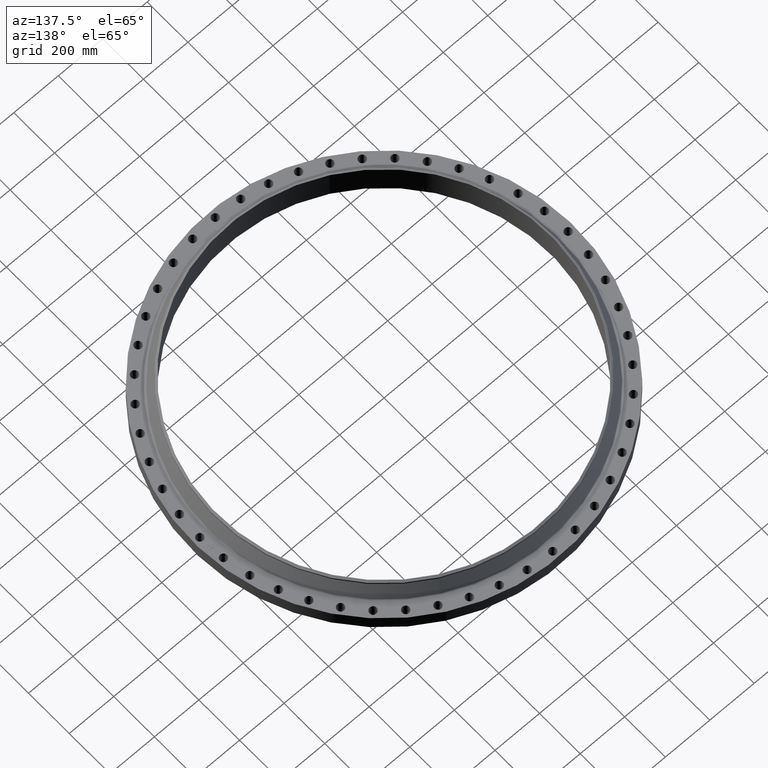
[diagram: clean part render]
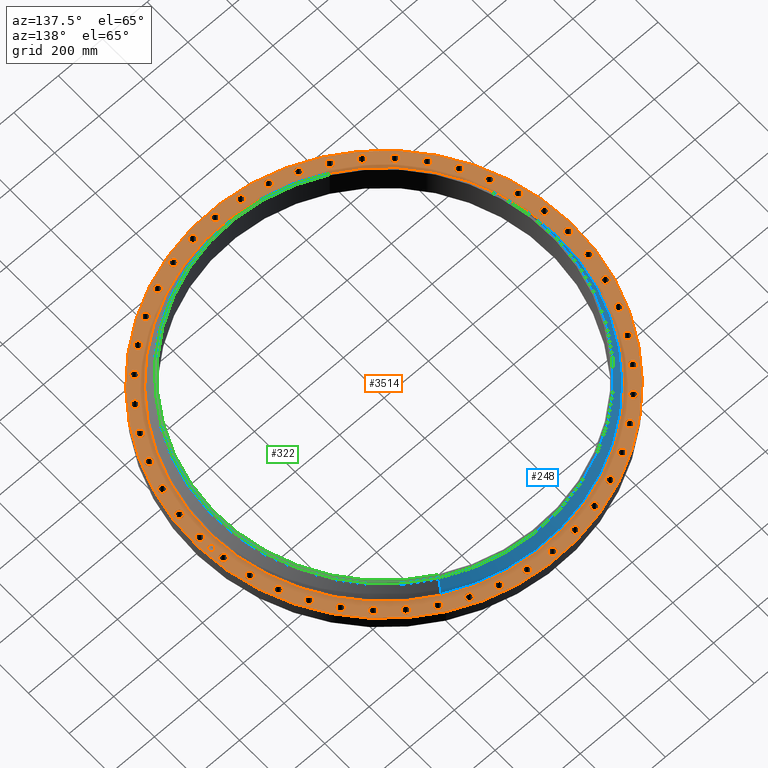
[diagram: same view with three faces highlighted in distinct colors, each labeled with its STEP entity id]
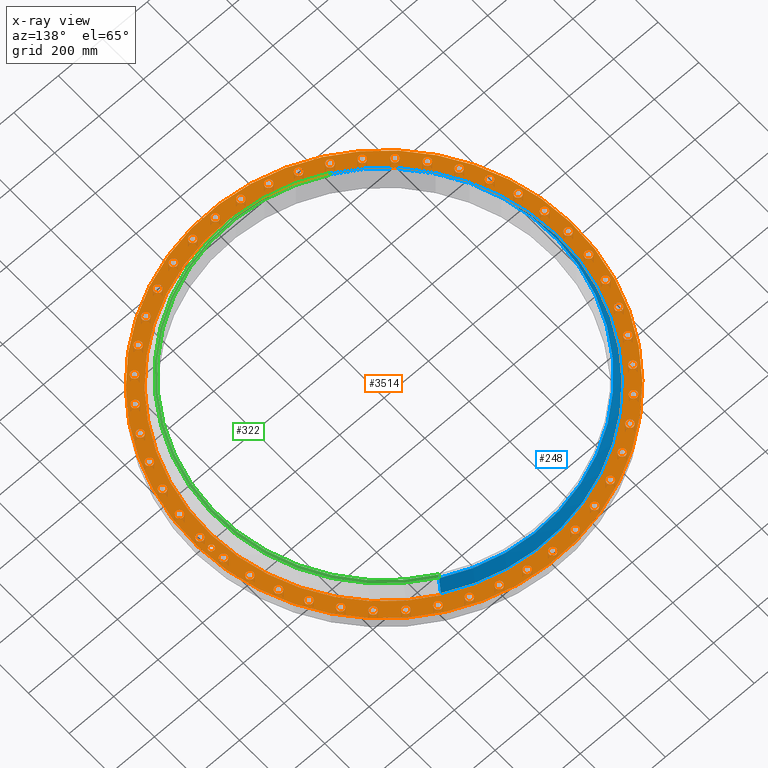
[diagram: x-ray of the same camera — body ghosted, the three highlighted faces saturated]
A machine part, auxiliary view with three faces highlighted in distinct colors.
The next image is the same camera in x-ray (body ghosted, the three faces saturated) — at least one of them is partly hidden behind the body in this view.
Their STEP definitions:

[orange] entity #3514 — the highlighted planar face has unit normal (0, 0, -1).
#65=AXIS2_PLACEMENT_3D('Circle Axis2P3D',#63,#64,$) ;
#82=AXIS2_PLACEMENT_3D('Circle Axis2P3D',#80,#81,$) ;
#115=AXIS2_PLACEMENT_3D('Circle Axis2P3D',#113,#114,$) ;
#139=AXIS2_PLACEMENT_3D('Circle Axis2P3D',#137,#138,$) ;
#156=AXIS2_PLACEMENT_3D('Circle Axis2P3D',#154,#155,$) ;
#191=AXIS2_PLACEMENT_3D('Circle Axis2P3D',#189,#190,$) ;
#1291=AXIS2_PLACEMENT_3D('Circle Axis2P3D',#1289,#1290,$) ;
#1303=AXIS2_PLACEMENT_3D('Circle Axis2P3D',#1301,#1302,$) ;
#1334=AXIS2_PLACEMENT_3D('Circle Axis2P3D',#1332,#1333,$) ;
#1346=AXIS2_PLACEMENT_3D('Circle Axis2P3D',#1344,#1345,$) ;
#1377=AXIS2_PLACEMENT_3D('Circle Axis2P3D',#1375,#1376,$) ;
#1389=AXIS2_PLACEMENT_3D('Circle Axis2P3D',#1387,#1388,$) ;
#1420=AXIS2_PLACEMENT_3D('Circle Axis2P3D',#1418,#1419,$) ;
#1432=AXIS2_PLACEMENT_3D('Circle Axis2P3D',#1430,#1431,$) ;
#1463=AXIS2_PLACEMENT_3D('Circle Axis2P3D',#1461,#1462,$) ;
#1475=AXIS2_PLACEMENT_3D('Circle Axis2P3D',#1473,#1474,$) ;
#1506=AXIS2_PLACEMENT_3D('Circle Axis2P3D',#1504,#1505,$) ;
#1518=AXIS2_PLACEMENT_3D('Circle Axis2P3D',#1516,#1517,$) ;
#1549=AXIS2_PLACEMENT_3D('Circle Axis2P3D',#1547,#1548,$) ;
#1561=AXIS2_PLACEMENT_3D('Circle Axis2P3D',#1559,#1560,$) ;
#1592=AXIS2_PLACEMENT_3D('Circle Axis2P3D',#1590,#1591,$) ;
#1604=AXIS2_PLACEMENT_3D('Circle Axis2P3D',#1602,#1603,$) ;
#1635=AXIS2_PLACEMENT_3D('Circle Axis2P3D',#1633,#1634,$) ;
#1647=AXIS2_PLACEMENT_3D('Circle Axis2P3D',#1645,#1646,$) ;
#1678=AXIS2_PLACEMENT_3D('Circle Axis2P3D',#1676,#1677,$) ;
#1690=AXIS2_PLACEMENT_3D('Circle Axis2P3D',#1688,#1689,$) ;
#1721=AXIS2_PLACEMENT_3D('Circle Axis2P3D',#1719,#1720,$) ;
#1733=AXIS2_PLACEMENT_3D('Circle Axis2P3D',#1731,#1732,$) ;
#1764=AXIS2_PLACEMENT_3D('Circle Axis2P3D',#1762,#1763,$) ;
#1776=AXIS2_PLACEMENT_3D('Circle Axis2P3D',#1774,#1775,$) ;
#1807=AXIS2_PLACEMENT_3D('Circle Axis2P3D',#1805,#1806,$) ;
#1819=AXIS2_PLACEMENT_3D('Circle Axis2P3D',#1817,#1818,$) ;
#1850=AXIS2_PLACEMENT_3D('Circle Axis2P3D',#1848,#1849,$) ;
#1862=AXIS2_PLACEMENT_3D('Circle Axis2P3D',#1860,#1861,$) ;
#1893=AXIS2_PLACEMENT_3D('Circle Axis2P3D',#1891,#1892,$) ;
#1905=AXIS2_PLACEMENT_3D('Circle Axis2P3D',#1903,#1904,$) ;
#1936=AXIS2_PLACEMENT_3D('Circle Axis2P3D',#1934,#1935,$) ;
#1948=AXIS2_PLACEMENT_3D('Circle Axis2P3D',#1946,#1947,$) ;
#1979=AXIS2_PLACEMENT_3D('Circle Axis2P3D',#1977,#1978,$) ;
#1991=AXIS2_PLACEMENT_3D('Circle Axis2P3D',#1989,#1990,$) ;
#2022=AXIS2_PLACEMENT_3D('Circle Axis2P3D',#2020,#2021,$) ;
#2034=AXIS2_PLACEMENT_3D('Circle Axis2P3D',#2032,#2033,$) ;
#2065=AXIS2_PLACEMENT_3D('Circle Axis2P3D',#2063,#2064,$) ;
#2077=AXIS2_PLACEMENT_3D('Circle Axis2P3D',#2075,#2076,$) ;
#2108=AXIS2_PLACEMENT_3D('Circle Axis2P3D',#2106,#2107,$) ;
#2120=AXIS2_PLACEMENT_3D('Circle Axis2P3D',#2118,#2119,$) ;
#2151=AXIS2_PLACEMENT_3D('Circle Axis2P3D',#2149,#2150,$) ;
#2163=AXIS2_PLACEMENT_3D('Circle Axis2P3D',#2161,#2162,$) ;
#2194=AXIS2_PLACEMENT_3D('Circle Axis2P3D',#2192,#2193,$) ;
#2206=AXIS2_PLACEMENT_3D('Circle Axis2P3D',#2204,#2205,$) ;
#2237=AXIS2_PLACEMENT_3D('Circle Axis2P3D',#2235,#2236,$) ;
#2249=AXIS2_PLACEMENT_3D('Circle Axis2P3D',#2247,#2248,$) ;
#2280=AXIS2_PLACEMENT_3D('Circle Axis2P3D',#2278,#2279,$) ;
#2292=AXIS2_PLACEMENT_3D('Circle Axis2P3D',#2290,#2291,$) ;
#2323=AXIS2_PLACEMENT_3D('Circle Axis2P3D',#2321,#2322,$) ;
#2335=AXIS2_PLACEMENT_3D('Circle Axis2P3D',#2333,#2334,$) ;
#2366=AXIS2_PLACEMENT_3D('Circle Axis2P3D',#2364,#2365,$) ;
#2378=AXIS2_PLACEMENT_3D('Circle Axis2P3D',#2376,#2377,$) ;
#2409=AXIS2_PLACEMENT_3D('Circle Axis2P3D',#2407,#2408,$) ;
#2421=AXIS2_PLACEMENT_3D('Circle Axis2P3D',#2419,#2420,$) ;
#2452=AXIS2_PLACEMENT_3D('Circle Axis2P3D',#2450,#2451,$) ;
#2464=AXIS2_PLACEMENT_3D('Circle Axis2P3D',#2462,#2463,$) ;
#2495=AXIS2_PLACEMENT_3D('Circle Axis2P3D',#2493,#2494,$) ;
#2507=AXIS2_PLACEMENT_3D('Circle Axis2P3D',#2505,#2506,$) ;
#2538=AXIS2_PLACEMENT_3D('Circle Axis2P3D',#2536,#2537,$) ;
#2550=AXIS2_PLACEMENT_3D('Circle Axis2P3D',#2548,#2549,$) ;
#2581=AXIS2_PLACEMENT_3D('Circle Axis2P3D',#2579,#2580,$) ;
#2593=AXIS2_PLACEMENT_3D('Circle Axis2P3D',#2591,#2592,$) ;
#2624=AXIS2_PLACEMENT_3D('Circle Axis2P3D',#2622,#2623,$) ;
#2636=AXIS2_PLACEMENT_3D('Circle Axis2P3D',#2634,#2635,$) ;
#2667=AXIS2_PLACEMENT_3D('Circle Axis2P3D',#2665,#2666,$) ;
#2679=AXIS2_PLACEMENT_3D('Circle Axis2P3D',#2677,#2678,$) ;
#2710=AXIS2_PLACEMENT_3D('Circle Axis2P3D',#2708,#2709,$) ;
#2722=AXIS2_PLACEMENT_3D('Circle Axis2P3D',#2720,#2721,$) ;
#2753=AXIS2_PLACEMENT_3D('Circle Axis2P3D',#2751,#2752,$) ;
#2765=AXIS2_PLACEMENT_3D('Circle Axis2P3D',#2763,#2764,$) ;
#2796=AXIS2_PLACEMENT_3D('Circle Axis2P3D',#2794,#2795,$) ;
#2808=AXIS2_PLACEMENT_3D('Circle Axis2P3D',#2806,#2807,$) ;
#2839=AXIS2_PLACEMENT_3D('Circle Axis2P3D',#2837,#2838,$) ;
#2851=AXIS2_PLACEMENT_3D('Circle Axis2P3D',#2849,#2850,$) ;
#2882=AXIS2_PLACEMENT_3D('Circle Axis2P3D',#2880,#2881,$) ;
#2894=AXIS2_PLACEMENT_3D('Circle Axis2P3D',#2892,#2893,$) ;
#2925=AXIS2_PLACEMENT_3D('Circle Axis2P3D',#2923,#2924,$) ;
#2937=AXIS2_PLACEMENT_3D('Circle Axis2P3D',#2935,#2936,$) ;
#2968=AXIS2_PLACEMENT_3D('Circle Axis2P3D',#2966,#2967,$) ;
#2980=AXIS2_PLACEMENT_3D('Circle Axis2P3D',#2978,#2979,$) ;
#3011=AXIS2_PLACEMENT_3D('Circle Axis2P3D',#3009,#3010,$) ;
#3023=AXIS2_PLACEMENT_3D('Circle Axis2P3D',#3021,#3022,$) ;
#3054=AXIS2_PLACEMENT_3D('Circle Axis2P3D',#3052,#3053,$) ;
#3066=AXIS2_PLACEMENT_3D('Circle Axis2P3D',#3064,#3065,$) ;
#3097=AXIS2_PLACEMENT_3D('Circle Axis2P3D',#3095,#3096,$) ;
#3109=AXIS2_PLACEMENT_3D('Circle Axis2P3D',#3107,#3108,$) ;
#3140=AXIS2_PLACEMENT_3D('Circle Axis2P3D',#3138,#3139,$) ;
#3152=AXIS2_PLACEMENT_3D('Circle Axis2P3D',#3150,#3151,$) ;
#3183=AXIS2_PLACEMENT_3D('Circle Axis2P3D',#3181,#3182,$) ;
#3195=AXIS2_PLACEMENT_3D('Circle Axis2P3D',#3193,#3194,$) ;
#3226=AXIS2_PLACEMENT_3D('Circle Axis2P3D',#3224,#3225,$) ;
#3238=AXIS2_PLACEMENT_3D('Circle Axis2P3D',#3236,#3237,$) ;
#3269=AXIS2_PLACEMENT_3D('Circle Axis2P3D',#3267,#3268,$) ;
#3281=AXIS2_PLACEMENT_3D('Circle Axis2P3D',#3279,#3280,$) ;
#3294=AXIS2_PLACEMENT_3D('Plane Axis2P3D',#3291,#3292,#3293) ;
#3498=AXIS2_PLACEMENT_3D('Circle Axis2P3D',#3496,#3497,$) ;
#3507=AXIS2_PLACEMENT_3D('Circle Axis2P3D',#3505,#3506,$) ;
#46=CARTESIAN_POINT('Vertex',(32.0765108989,0.299640961629,2.75000000001)) ;
#60=CARTESIAN_POINT('Vertex',(33.1734891013,-0.299640961629,2.75000000001)) ;
#63=CARTESIAN_POINT('Axis2P3D Location',(32.6250000001,0.,2.75000000001)) ;
#80=CARTESIAN_POINT('Axis2P3D Location',(32.6250000001,0.,2.75000000001)) ;
#110=CARTESIAN_POINT('Vertex',(-16.180611928,-29.6184114639,2.75000000001)) ;
#113=CARTESIAN_POINT('Axis2P3D Location',(0.,0.,2.75000000001)) ;
#117=CARTESIAN_POINT('Vertex',(16.180611928,29.6184114639,2.75000000001)) ;
#137=CARTESIAN_POINT('Axis2P3D Location',(0.,0.,2.75000000001)) ;
#154=CARTESIAN_POINT('Axis2P3D Location',(0.,0.,2.75000000001)) ;
#158=CARTESIAN_POINT('Vertex',(14.9999204068,27.4571701313,2.75000000001)) ;
#160=CARTESIAN_POINT('Vertex',(-14.9999204068,-27.4571701313,2.75000000001)) ;
#189=CARTESIAN_POINT('Axis2P3D Location',(0.,0.,2.75000000001)) ;
#1279=CARTESIAN_POINT('Vertex',(-31.8412028953,3.88974733568,2.75000000001)) ;
#1286=CARTESIAN_POINT('Vertex',(-32.8505743096,4.62708670671,2.75000000001)) ;
#1289=CARTESIAN_POINT('Axis2P3D Location',(-32.3458886024,4.2584170212,2.75000000001)) ;
#1301=CARTESIAN_POINT('Axis2P3D Location',(-32.3458886024,4.2584170212,2.75000000001)) ;
#1322=CARTESIAN_POINT('Vertex',(31.0610830821,-8.01258097763,2.75000000001)) ;
#1329=CARTESIAN_POINT('Vertex',(31.9655770835,-8.87536171537,2.75000000001)) ;
#1332=CARTESIAN_POINT('Axis2P3D Location',(31.5133300828,-8.4439713465,2.75000000001)) ;
#1344=CARTESIAN_POINT('Axis2P3D Location',(31.5133300828,-8.4439713465,2.75000000001)) ;
#1365=CARTESIAN_POINT('Vertex',(-31.0610830821,8.01258097763,2.75000000001)) ;
#1372=CARTESIAN_POINT('Vertex',(-31.9655770835,8.87536171537,2.75000000001)) ;
#1375=CARTESIAN_POINT('Axis2P3D Location',(-31.5133300828,8.4439713465,2.75000000001)) ;
#1387=CARTESIAN_POINT('Axis2P3D Location',(-31.5133300828,8.4439713465,2.75000000001)) ;
#1408=CARTESIAN_POINT('Vertex',(29.7494995256,-11.9983171376,2.75000000001)) ;
#1415=CARTESIAN_POINT('Vertex',(30.533639971,-12.9717768244,2.75000000001)) ;
#1418=CARTESIAN_POINT('Axis2P3D Location',(30.1415697483,-12.485046981,2.75000000001)) ;
#1430=CARTESIAN_POINT('Axis2P3D Location',(30.1415697483,-12.485046981,2.75000000001)) ;
#1451=CARTESIAN_POINT('Vertex',(-29.7494995256,11.9983171376,2.75000000001)) ;
#1458=CARTESIAN_POINT('Vertex',(-30.533639971,12.9717768244,2.75000000001)) ;
#1461=CARTESIAN_POINT('Axis2P3D Location',(-30.1415697483,12.485046981,2.75000000001)) ;
#1473=CARTESIAN_POINT('Axis2P3D Location',(-30.1415697483,12.485046981,2.75000000001)) ;
#1494=CARTESIAN_POINT('Vertex',(27.9288937841,-15.7787587647,2.75000000001)) ;
#1501=CARTESIAN_POINT('Vertex',(28.5792638131,-16.8462412354,2.75000000001)) ;
#1504=CARTESIAN_POINT('Axis2P3D Location',(28.2540787986,-16.3125000001,2.75000000001)) ;
#1516=CARTESIAN_POINT('Axis2P3D Location',(28.2540787986,-16.3125000001,2.75000000001)) ;
#1537=CARTESIAN_POINT('Vertex',(-27.9288937841,15.7787587647,2.75000000001)) ;
#1544=CARTESIAN_POINT('Vertex',(-28.5792638131,16.8462412354,2.75000000001)) ;
#1547=CARTESIAN_POINT('Axis2P3D Location',(-28.2540787986,16.3125000001,2.75000000001)) ;
#1559=CARTESIAN_POINT('Axis2P3D Location',(-28.2540787986,16.3125000001,2.75000000001)) ;
#1580=CARTESIAN_POINT('Vertex',(25.6304169266,-19.2892214547,2.75000000001)) ;
#1587=CARTESIAN_POINT('Vertex',(26.1358885277,-20.4324617883,2.75000000001)) ;
#1590=CARTESIAN_POINT('Axis2P3D Location',(25.8831527271,-19.8608416215,2.75000000001)) ;
#1602=CARTESIAN_POINT('Axis2P3D Location',(25.8831527271,-19.8608416215,2.75000000001)) ;
#1623=CARTESIAN_POINT('Vertex',(-25.6304169266,19.2892214547,2.75000000001)) ;
#1630=CARTESIAN_POINT('Vertex',(-26.1358885277,20.4324617883,2.75000000001)) ;
#1633=CARTESIAN_POINT('Axis2P3D Location',(-25.8831527271,19.8608416215,2.75000000001)) ;
#1645=CARTESIAN_POINT('Axis2P3D Location',(-25.8831527271,19.8608416215,2.75000000001)) ;
#1666=CARTESIAN_POINT('Vertex',(22.8933965293,-22.4696402176,2.75000000001)) ;
#1673=CARTESIAN_POINT('Vertex',(23.2453209433,-23.669077255,2.75000000001)) ;
#1676=CARTESIAN_POINT('Axis2P3D Location',(23.0693587363,-23.0693587363,2.75000000001)) ;
#1688=CARTESIAN_POINT('Axis2P3D Location',(23.0693587363,-23.0693587363,2.75000000001)) ;
#1709=CARTESIAN_POINT('Vertex',(-22.8933965293,22.4696402176,2.75000000001)) ;
#1716=CARTESIAN_POINT('Vertex',(-23.2453209433,23.669077255,2.75000000001)) ;
#1719=CARTESIAN_POINT('Axis2P3D Location',(-23.0693587363,23.0693587363,2.75000000001)) ;
#1731=CARTESIAN_POINT('Axis2P3D Location',(-23.0693587363,23.0693587363,2.75000000001)) ;
#1752=CARTESIAN_POINT('Vertex',(19.7646637703,-25.2655972066,2.75000000001)) ;
#1759=CARTESIAN_POINT('Vertex',(19.9570194727,-26.5007082476,2.75000000001)) ;
#1762=CARTESIAN_POINT('Axis2P3D Location',(19.8608416215,-25.8831527271,2.75000000001)) ;
#1774=CARTESIAN_POINT('Axis2P3D Location',(19.8608416215,-25.8831527271,2.75000000001)) ;
#1795=CARTESIAN_POINT('Vertex',(-19.7646637703,25.2655972066,2.75000000001)) ;
#1802=CARTESIAN_POINT('Vertex',(-19.9570194727,26.5007082476,2.75000000001)) ;
#1805=CARTESIAN_POINT('Axis2P3D Location',(-19.8608416215,25.8831527271,2.75000000001)) ;
#1817=CARTESIAN_POINT('Axis2P3D Location',(-19.8608416215,25.8831527271,2.75000000001)) ;
#1838=CARTESIAN_POINT('Vertex',(16.2977521343,-27.6292528224,2.75000000001)) ;
#1845=CARTESIAN_POINT('Vertex',(16.3272478659,-28.8789047747,2.75000000001)) ;
#1848=CARTESIAN_POINT('Axis2P3D Location',(16.3125000001,-28.2540787986,2.75000000001)) ;
#1860=CARTESIAN_POINT('Axis2P3D Location',(16.3125000001,-28.2540787986,2.75000000001)) ;
#1881=CARTESIAN_POINT('Vertex',(-16.2977521343,27.6292528224,2.75000000001)) ;
#1888=CARTESIAN_POINT('Vertex',(-16.3272478659,28.8789047747,2.75000000001)) ;
#1891=CARTESIAN_POINT('Axis2P3D Location',(-16.3125000001,28.2540787986,2.75000000001)) ;
#1903=CARTESIAN_POINT('Axis2P3D Location',(-16.3125000001,28.2540787986,2.75000000001)) ;
#1924=CARTESIAN_POINT('Vertex',(12.5519814407,-29.5201642622,2.75000000001)) ;
#1931=CARTESIAN_POINT('Vertex',(12.4181125213,-30.7629752344,2.75000000001)) ;
#1934=CARTESIAN_POINT('Axis2P3D Location',(12.485046981,-30.1415697483,2.75000000001)) ;
#1946=CARTESIAN_POINT('Axis2P3D Location',(12.485046981,-30.1415697483,2.75000000001)) ;
#1967=CARTESIAN_POINT('Vertex',(-12.5519814407,29.5201642622,2.75000000001)) ;
#1974=CARTESIAN_POINT('Vertex',(-12.4181125213,30.7629752344,2.75000000001)) ;
#1977=CARTESIAN_POINT('Axis2P3D Location',(-12.485046981,30.1415697483,2.75000000001)) ;
#1989=CARTESIAN_POINT('Axis2P3D Location',(-12.485046981,30.1415697483,2.75000000001)) ;
#2010=CARTESIAN_POINT('Vertex',(8.59144286454,-30.905977507,2.75000000001)) ;
#2017=CARTESIAN_POINT('Vertex',(8.29649982847,-32.1206826586,2.75000000001)) ;
#2020=CARTESIAN_POINT('Axis2P3D Location',(8.4439713465,-31.5133300828,2.75000000001)) ;
#2032=CARTESIAN_POINT('Axis2P3D Location',(8.4439713465,-31.5133300828,2.75000000001)) ;
#2053=CARTESIAN_POINT('Vertex',(-8.59144286454,30.905977507,2.75000000001)) ;
#2060=CARTESIAN_POINT('Vertex',(-8.29649982847,32.1206826586,2.75000000001)) ;
#2063=CARTESIAN_POINT('Axis2P3D Location',(-8.4439713465,31.5133300828,2.75000000001)) ;
#2075=CARTESIAN_POINT('Axis2P3D Location',(-8.4439713465,31.5133300828,2.75000000001)) ;
#2096=CARTESIAN_POINT('Vertex',(4.48390231901,-31.7629809078,2.75000000001)) ;
#2103=CARTESIAN_POINT('Vertex',(4.03293172338,-32.9287962971,2.75000000001)) ;
#2106=CARTESIAN_POINT('Axis2P3D Location',(4.2584170212,-32.3458886024,2.75000000001)) ;
#2118=CARTESIAN_POINT('Axis2P3D Location',(4.2584170212,-32.3458886024,2.75000000001)) ;
#2139=CARTESIAN_POINT('Vertex',(-4.48390231901,31.7629809078,2.75000000001)) ;
#2146=CARTESIAN_POINT('Vertex',(-4.03293172338,32.9287962971,2.75000000001)) ;
#2149=CARTESIAN_POINT('Axis2P3D Location',(-4.2584170212,32.3458886024,2.75000000001)) ;
#2161=CARTESIAN_POINT('Axis2P3D Location',(-4.2584170212,32.3458886024,2.75000000001)) ;
#2182=CARTESIAN_POINT('Vertex',(0.299640961629,-32.0765108989,2.75000000001)) ;
#2189=CARTESIAN_POINT('Vertex',(-0.299640961629,-33.1734891013,2.75000000001)) ;
#2192=CARTESIAN_POINT('Axis2P3D Location',(-2.4781546617E-015,-32.6250000001,2.75000000001)) ;
#2204=CARTESIAN_POINT('Axis2P3D Location',(-2.4781546617E-015,-32.6250000001,2.75000000001)) ;
#2225=CARTESIAN_POINT('Vertex',(-0.299640961629,32.0765108989,2.75000000001)) ;
#2232=CARTESIAN_POINT('Vertex',(0.299640961629,33.1734891013,2.75000000001)) ;
#2235=CARTESIAN_POINT('Axis2P3D Location',(-1.51725552053E-015,32.6250000001,2.75000000001)) ;
#2247=CARTESIAN_POINT('Axis2P3D Location',(-1.51725552053E-015,32.6250000001,2.75000000001)) ;
#2268=CARTESIAN_POINT('Vertex',(-3.88974733568,-31.8412028953,2.75000000001)) ;
#2275=CARTESIAN_POINT('Vertex',(-4.62708670671,-32.8505743096,2.75000000001)) ;
#2278=CARTESIAN_POINT('Axis2P3D Location',(-4.2584170212,-32.3458886024,2.75000000001)) ;
#2290=CARTESIAN_POINT('Axis2P3D Location',(-4.2584170212,-32.3458886024,2.75000000001)) ;
#2311=CARTESIAN_POINT('Vertex',(3.88974733568,31.8412028953,2.75000000001)) ;
#2318=CARTESIAN_POINT('Vertex',(4.62708670671,32.8505743096,2.75000000001)) ;
#2321=CARTESIAN_POINT('Axis2P3D Location',(4.2584170212,32.3458886024,2.75000000001)) ;
#2333=CARTESIAN_POINT('Axis2P3D Location',(4.2584170212,32.3458886024,2.75000000001)) ;
#2354=CARTESIAN_POINT('Vertex',(-8.01258097763,-31.0610830821,2.75000000001)) ;
#2361=CARTESIAN_POINT('Vertex',(-8.87536171537,-31.9655770835,2.75000000001)) ;
#2364=CARTESIAN_POINT('Axis2P3D Location',(-8.4439713465,-31.5133300828,2.75000000001)) ;
#2376=CARTESIAN_POINT('Axis2P3D Location',(-8.4439713465,-31.5133300828,2.75000000001)) ;
#2397=CARTESIAN_POINT('Vertex',(8.01258097763,31.0610830821,2.75000000001)) ;
#2404=CARTESIAN_POINT('Vertex',(8.87536171537,31.9655770835,2.75000000001)) ;
#2407=CARTESIAN_POINT('Axis2P3D Location',(8.4439713465,31.5133300828,2.75000000001)) ;
#2419=CARTESIAN_POINT('Axis2P3D Location',(8.4439713465,31.5133300828,2.75000000001)) ;
#2440=CARTESIAN_POINT('Vertex',(-11.9983171376,-29.7494995256,2.75000000001)) ;
#2447=CARTESIAN_POINT('Vertex',(-12.9717768244,-30.533639971,2.75000000001)) ;
#2450=CARTESIAN_POINT('Axis2P3D Location',(-12.485046981,-30.1415697483,2.75000000001)) ;
#2462=CARTESIAN_POINT('Axis2P3D Location',(-12.485046981,-30.1415697483,2.75000000001)) ;
#2483=CARTESIAN_POINT('Vertex',(11.9983171376,29.7494995256,2.75000000001)) ;
#2490=CARTESIAN_POINT('Vertex',(12.9717768244,30.533639971,2.75000000001)) ;
#2493=CARTESIAN_POINT('Axis2P3D Location',(12.485046981,30.1415697483,2.75000000001)) ;
#2505=CARTESIAN_POINT('Axis2P3D Location',(12.485046981,30.1415697483,2.75000000001)) ;
#2526=CARTESIAN_POINT('Vertex',(-15.7787587647,-27.9288937841,2.75000000001)) ;
#2533=CARTESIAN_POINT('Vertex',(-16.8462412354,-28.5792638131,2.75000000001)) ;
#2536=CARTESIAN_POINT('Axis2P3D Location',(-16.3125000001,-28.2540787986,2.75000000001)) ;
#2548=CARTESIAN_POINT('Axis2P3D Location',(-16.3125000001,-28.2540787986,2.75000000001)) ;
#2569=CARTESIAN_POINT('Vertex',(15.7787587647,27.9288937841,2.75000000001)) ;
#2576=CARTESIAN_POINT('Vertex',(16.8462412354,28.5792638131,2.75000000001)) ;
#2579=CARTESIAN_POINT('Axis2P3D Location',(16.3125000001,28.2540787986,2.75000000001)) ;
#2591=CARTESIAN_POINT('Axis2P3D Location',(16.3125000001,28.2540787986,2.75000000001)) ;
#2612=CARTESIAN_POINT('Vertex',(-19.2892214547,-25.6304169266,2.75000000001)) ;
#2619=CARTESIAN_POINT('Vertex',(-20.4324617883,-26.1358885277,2.75000000001)) ;
#2622=CARTESIAN_POINT('Axis2P3D Location',(-19.8608416215,-25.8831527271,2.75000000001)) ;
#2634=CARTESIAN_POINT('Axis2P3D Location',(-19.8608416215,-25.8831527271,2.75000000001)) ;
#2655=CARTESIAN_POINT('Vertex',(19.2892214547,25.6304169266,2.75000000001)) ;
#2662=CARTESIAN_POINT('Vertex',(20.4324617883,26.1358885277,2.75000000001)) ;
#2665=CARTESIAN_POINT('Axis2P3D Location',(19.8608416215,25.8831527271,2.75000000001)) ;
#2677=CARTESIAN_POINT('Axis2P3D Location',(19.8608416215,25.8831527271,2.75000000001)) ;
#2698=CARTESIAN_POINT('Vertex',(-22.4696402176,-22.8933965293,2.75000000001)) ;
#2705=CARTESIAN_POINT('Vertex',(-23.669077255,-23.2453209433,2.75000000001)) ;
#2708=CARTESIAN_POINT('Axis2P3D Location',(-23.0693587363,-23.0693587363,2.75000000001)) ;
#2720=CARTESIAN_POINT('Axis2P3D Location',(-23.0693587363,-23.0693587363,2.75000000001)) ;
#2741=CARTESIAN_POINT('Vertex',(22.4696402176,22.8933965293,2.75000000001)) ;
#2748=CARTESIAN_POINT('Vertex',(23.669077255,23.2453209433,2.75000000001)) ;
#2751=CARTESIAN_POINT('Axis2P3D Location',(23.0693587363,23.0693587363,2.75000000001)) ;
#2763=CARTESIAN_POINT('Axis2P3D Location',(23.0693587363,23.0693587363,2.75000000001)) ;
#2784=CARTESIAN_POINT('Vertex',(-25.2655972066,-19.7646637703,2.75000000001)) ;
#2791=CARTESIAN_POINT('Vertex',(-26.5007082476,-19.9570194727,2.75000000001)) ;
#2794=CARTESIAN_POINT('Axis2P3D Location',(-25.8831527271,-19.8608416215,2.75000000001)) ;
#2806=CARTESIAN_POINT('Axis2P3D Location',(-25.8831527271,-19.8608416215,2.75000000001)) ;
#2827=CARTESIAN_POINT('Vertex',(25.2655972066,19.7646637703,2.75000000001)) ;
#2834=CARTESIAN_POINT('Vertex',(26.5007082476,19.9570194727,2.75000000001)) ;
#2837=CARTESIAN_POINT('Axis2P3D Location',(25.8831527271,19.8608416215,2.75000000001)) ;
#2849=CARTESIAN_POINT('Axis2P3D Location',(25.8831527271,19.8608416215,2.75000000001)) ;
#2870=CARTESIAN_POINT('Vertex',(-27.6292528224,-16.2977521343,2.75000000001)) ;
#2877=CARTESIAN_POINT('Vertex',(-28.8789047747,-16.3272478659,2.75000000001)) ;
#2880=CARTESIAN_POINT('Axis2P3D Location',(-28.2540787986,-16.3125000001,2.75000000001)) ;
#2892=CARTESIAN_POINT('Axis2P3D Location',(-28.2540787986,-16.3125000001,2.75000000001)) ;
#2913=CARTESIAN_POINT('Vertex',(27.6292528224,16.2977521343,2.75000000001)) ;
#2920=CARTESIAN_POINT('Vertex',(28.8789047747,16.3272478659,2.75000000001)) ;
#2923=CARTESIAN_POINT('Axis2P3D Location',(28.2540787986,16.3125000001,2.75000000001)) ;
#2935=CARTESIAN_POINT('Axis2P3D Location',(28.2540787986,16.3125000001,2.75000000001)) ;
#2956=CARTESIAN_POINT('Vertex',(-29.5201642622,-12.5519814407,2.75000000001)) ;
#2963=CARTESIAN_POINT('Vertex',(-30.7629752344,-12.4181125213,2.75000000001)) ;
#2966=CARTESIAN_POINT('Axis2P3D Location',(-30.1415697483,-12.485046981,2.75000000001)) ;
#2978=CARTESIAN_POINT('Axis2P3D Location',(-30.1415697483,-12.485046981,2.75000000001)) ;
#2999=CARTESIAN_POINT('Vertex',(29.5201642622,12.5519814407,2.75000000001)) ;
#3006=CARTESIAN_POINT('Vertex',(30.7629752344,12.4181125213,2.75000000001)) ;
#3009=CARTESIAN_POINT('Axis2P3D Location',(30.1415697483,12.485046981,2.75000000001)) ;
#3021=CARTESIAN_POINT('Axis2P3D Location',(30.1415697483,12.485046981,2.75000000001)) ;
#3042=CARTESIAN_POINT('Vertex',(-30.905977507,-8.59144286454,2.75000000001)) ;
#3049=CARTESIAN_POINT('Vertex',(-32.1206826586,-8.29649982847,2.75000000001)) ;
#3052=CARTESIAN_POINT('Axis2P3D Location',(-31.5133300828,-8.4439713465,2.75000000001)) ;
#3064=CARTESIAN_POINT('Axis2P3D Location',(-31.5133300828,-8.4439713465,2.75000000001)) ;
#3085=CARTESIAN_POINT('Vertex',(30.905977507,8.59144286454,2.75000000001)) ;
#3092=CARTESIAN_POINT('Vertex',(32.1206826586,8.29649982847,2.75000000001)) ;
#3095=CARTESIAN_POINT('Axis2P3D Location',(31.5133300828,8.4439713465,2.75000000001)) ;
#3107=CARTESIAN_POINT('Axis2P3D Location',(31.5133300828,8.4439713465,2.75000000001)) ;
#3128=CARTESIAN_POINT('Vertex',(-31.7629809078,-4.48390231901,2.75000000001)) ;
#3135=CARTESIAN_POINT('Vertex',(-32.9287962971,-4.03293172338,2.75000000001)) ;
#3138=CARTESIAN_POINT('Axis2P3D Location',(-32.3458886024,-4.2584170212,2.75000000001)) ;
#3150=CARTESIAN_POINT('Axis2P3D Location',(-32.3458886024,-4.2584170212,2.75000000001)) ;
#3171=CARTESIAN_POINT('Vertex',(31.7629809078,4.48390231901,2.75000000001)) ;
#3178=CARTESIAN_POINT('Vertex',(32.9287962971,4.03293172338,2.75000000001)) ;
#3181=CARTESIAN_POINT('Axis2P3D Location',(32.3458886024,4.2584170212,2.75000000001)) ;
#3193=CARTESIAN_POINT('Axis2P3D Location',(32.3458886024,4.2584170212,2.75000000001)) ;
#3214=CARTESIAN_POINT('Vertex',(-32.0765108989,-0.299640961629,2.75000000001)) ;
#3221=CARTESIAN_POINT('Vertex',(-33.1734891013,0.299640961629,2.75000000001)) ;
#3224=CARTESIAN_POINT('Axis2P3D Location',(-32.6250000001,-3.99541018223E-015,2.75000000001)) ;
#3236=CARTESIAN_POINT('Axis2P3D Location',(-32.6250000001,-3.99541018223E-015,2.75000000001)) ;
#3257=CARTESIAN_POINT('Vertex',(31.8412028953,-3.88974733568,2.75000000001)) ;
#3264=CARTESIAN_POINT('Vertex',(32.8505743096,-4.62708670671,2.75000000001)) ;
#3267=CARTESIAN_POINT('Axis2P3D Location',(32.3458886024,-4.2584170212,2.75000000001)) ;
#3279=CARTESIAN_POINT('Axis2P3D Location',(32.3458886024,-4.2584170212,2.75000000001)) ;
#3291=CARTESIAN_POINT('Axis2P3D Location',(0.,33.7500000001,2.75000000001)) ;
#3496=CARTESIAN_POINT('Axis2P3D Location',(32.5551473708,2.13377709114,2.75000000001)) ;
#3500=CARTESIAN_POINT('Vertex',(32.5224458811,2.63270540921,2.75000000001)) ;
#3502=CARTESIAN_POINT('Vertex',(32.5878488605,1.63484877307,2.75000000001)) ;
#3505=CARTESIAN_POINT('Axis2P3D Location',(32.5551473708,2.13377709114,2.75000000001)) ;
#64=DIRECTION('Axis2P3D Direction',(0.,-0.,-0.0393700787402)) ;
#81=DIRECTION('Axis2P3D Direction',(0.,-0.,-0.0393700787402)) ;
#114=DIRECTION('Axis2P3D Direction',(0.,0.,-0.0393700787402)) ;
#138=DIRECTION('Axis2P3D Direction',(0.,0.,-0.0393700787402)) ;
#155=DIRECTION('Axis2P3D Direction',(0.,0.,-0.0393700787402)) ;
#190=DIRECTION('Axis2P3D Direction',(0.,0.,-0.0393700787402)) ;
#1290=DIRECTION('Axis2P3D Direction',(0.,0.,-0.0393700787402)) ;
#1302=DIRECTION('Axis2P3D Direction',(0.,0.,-0.0393700787402)) ;
#1333=DIRECTION('Axis2P3D Direction',(0.,-0.,-0.0393700787402)) ;
#1345=DIRECTION('Axis2P3D Direction',(0.,-0.,-0.0393700787402)) ;
#1376=DIRECTION('Axis2P3D Direction',(0.,0.,-0.0393700787402)) ;
#1388=DIRECTION('Axis2P3D Direction',(0.,0.,-0.0393700787402)) ;
#1419=DIRECTION('Axis2P3D Direction',(0.,-0.,-0.0393700787402)) ;
#1431=DIRECTION('Axis2P3D Direction',(0.,-0.,-0.0393700787402)) ;
#1462=DIRECTION('Axis2P3D Direction',(0.,0.,-0.0393700787402)) ;
#1474=DIRECTION('Axis2P3D Direction',(0.,0.,-0.0393700787402)) ;
#1505=DIRECTION('Axis2P3D Direction',(0.,-0.,-0.0393700787402)) ;
#1517=DIRECTION('Axis2P3D Direction',(0.,-0.,-0.0393700787402)) ;
#1548=DIRECTION('Axis2P3D Direction',(0.,0.,-0.0393700787402)) ;
#1560=DIRECTION('Axis2P3D Direction',(0.,0.,-0.0393700787402)) ;
#1591=DIRECTION('Axis2P3D Direction',(0.,-0.,-0.0393700787402)) ;
#1603=DIRECTION('Axis2P3D Direction',(0.,-0.,-0.0393700787402)) ;
#1634=DIRECTION('Axis2P3D Direction',(0.,0.,-0.0393700787402)) ;
#1646=DIRECTION('Axis2P3D Direction',(0.,0.,-0.0393700787402)) ;
#1677=DIRECTION('Axis2P3D Direction',(0.,-0.,-0.0393700787402)) ;
#1689=DIRECTION('Axis2P3D Direction',(0.,-0.,-0.0393700787402)) ;
#1720=DIRECTION('Axis2P3D Direction',(0.,0.,-0.0393700787402)) ;
#1732=DIRECTION('Axis2P3D Direction',(0.,0.,-0.0393700787402)) ;
#1763=DIRECTION('Axis2P3D Direction',(0.,-0.,-0.0393700787402)) ;
#1775=DIRECTION('Axis2P3D Direction',(0.,-0.,-0.0393700787402)) ;
#1806=DIRECTION('Axis2P3D Direction',(0.,0.,-0.0393700787402)) ;
#1818=DIRECTION('Axis2P3D Direction',(0.,0.,-0.0393700787402)) ;
#1849=DIRECTION('Axis2P3D Direction',(0.,-0.,-0.0393700787402)) ;
#1861=DIRECTION('Axis2P3D Direction',(0.,-0.,-0.0393700787402)) ;
#1892=DIRECTION('Axis2P3D Direction',(0.,0.,-0.0393700787402)) ;
#1904=DIRECTION('Axis2P3D Direction',(0.,0.,-0.0393700787402)) ;
#1935=DIRECTION('Axis2P3D Direction',(0.,-0.,-0.0393700787402)) ;
#1947=DIRECTION('Axis2P3D Direction',(0.,-0.,-0.0393700787402)) ;
#1978=DIRECTION('Axis2P3D Direction',(0.,0.,-0.0393700787402)) ;
#1990=DIRECTION('Axis2P3D Direction',(0.,0.,-0.0393700787402)) ;
#2021=DIRECTION('Axis2P3D Direction',(0.,-0.,-0.0393700787402)) ;
#2033=DIRECTION('Axis2P3D Direction',(0.,-0.,-0.0393700787402)) ;
#2064=DIRECTION('Axis2P3D Direction',(0.,0.,-0.0393700787402)) ;
#2076=DIRECTION('Axis2P3D Direction',(0.,0.,-0.0393700787402)) ;
#2107=DIRECTION('Axis2P3D Direction',(0.,-0.,-0.0393700787402)) ;
#2119=DIRECTION('Axis2P3D Direction',(0.,-0.,-0.0393700787402)) ;
#2150=DIRECTION('Axis2P3D Direction',(0.,0.,-0.0393700787402)) ;
#2162=DIRECTION('Axis2P3D Direction',(0.,0.,-0.0393700787402)) ;
#2193=DIRECTION('Axis2P3D Direction',(0.,-0.,-0.0393700787402)) ;
#2205=DIRECTION('Axis2P3D Direction',(0.,-0.,-0.0393700787402)) ;
#2236=DIRECTION('Axis2P3D Direction',(0.,0.,-0.0393700787402)) ;
#2248=DIRECTION('Axis2P3D Direction',(0.,0.,-0.0393700787402)) ;
#2279=DIRECTION('Axis2P3D Direction',(-0.,0.,-0.0393700787402)) ;
#2291=DIRECTION('Axis2P3D Direction',(-0.,0.,-0.0393700787402)) ;
#2322=DIRECTION('Axis2P3D Direction',(0.,0.,-0.0393700787402)) ;
#2334=DIRECTION('Axis2P3D Direction',(0.,0.,-0.0393700787402)) ;
#2365=DIRECTION('Axis2P3D Direction',(-0.,0.,-0.0393700787402)) ;
#2377=DIRECTION('Axis2P3D Direction',(-0.,0.,-0.0393700787402)) ;
#2408=DIRECTION('Axis2P3D Direction',(0.,0.,-0.0393700787402)) ;
#2420=DIRECTION('Axis2P3D Direction',(0.,0.,-0.0393700787402)) ;
#2451=DIRECTION('Axis2P3D Direction',(-0.,0.,-0.0393700787402)) ;
#2463=DIRECTION('Axis2P3D Direction',(-0.,0.,-0.0393700787402)) ;
#2494=DIRECTION('Axis2P3D Direction',(0.,0.,-0.0393700787402)) ;
#2506=DIRECTION('Axis2P3D Direction',(0.,0.,-0.0393700787402)) ;
#2537=DIRECTION('Axis2P3D Direction',(-0.,0.,-0.0393700787402)) ;
#2549=DIRECTION('Axis2P3D Direction',(-0.,0.,-0.0393700787402)) ;
#2580=DIRECTION('Axis2P3D Direction',(0.,0.,-0.0393700787402)) ;
#2592=DIRECTION('Axis2P3D Direction',(0.,0.,-0.0393700787402)) ;
#2623=DIRECTION('Axis2P3D Direction',(-0.,0.,-0.0393700787402)) ;
#2635=DIRECTION('Axis2P3D Direction',(-0.,0.,-0.0393700787402)) ;
#2666=DIRECTION('Axis2P3D Direction',(0.,0.,-0.0393700787402)) ;
#2678=DIRECTION('Axis2P3D Direction',(0.,0.,-0.0393700787402)) ;
#2709=DIRECTION('Axis2P3D Direction',(-0.,0.,-0.0393700787402)) ;
#2721=DIRECTION('Axis2P3D Direction',(-0.,0.,-0.0393700787402)) ;
#2752=DIRECTION('Axis2P3D Direction',(0.,0.,-0.0393700787402)) ;
#2764=DIRECTION('Axis2P3D Direction',(0.,0.,-0.0393700787402)) ;
#2795=DIRECTION('Axis2P3D Direction',(-0.,0.,-0.0393700787402)) ;
#2807=DIRECTION('Axis2P3D Direction',(-0.,0.,-0.0393700787402)) ;
#2838=DIRECTION('Axis2P3D Direction',(0.,0.,-0.0393700787402)) ;
#2850=DIRECTION('Axis2P3D Direction',(0.,0.,-0.0393700787402)) ;
#2881=DIRECTION('Axis2P3D Direction',(-0.,0.,-0.0393700787402)) ;
#2893=DIRECTION('Axis2P3D Direction',(-0.,0.,-0.0393700787402)) ;
#2924=DIRECTION('Axis2P3D Direction',(0.,0.,-0.0393700787402)) ;
#2936=DIRECTION('Axis2P3D Direction',(0.,0.,-0.0393700787402)) ;
#2967=DIRECTION('Axis2P3D Direction',(-0.,0.,-0.0393700787402)) ;
#2979=DIRECTION('Axis2P3D Direction',(-0.,0.,-0.0393700787402)) ;
#3010=DIRECTION('Axis2P3D Direction',(0.,0.,-0.0393700787402)) ;
#3022=DIRECTION('Axis2P3D Direction',(0.,0.,-0.0393700787402)) ;
#3053=DIRECTION('Axis2P3D Direction',(-0.,0.,-0.0393700787402)) ;
#3065=DIRECTION('Axis2P3D Direction',(-0.,0.,-0.0393700787402)) ;
#3096=DIRECTION('Axis2P3D Direction',(0.,0.,-0.0393700787402)) ;
#3108=DIRECTION('Axis2P3D Direction',(0.,0.,-0.0393700787402)) ;
#3139=DIRECTION('Axis2P3D Direction',(-0.,0.,-0.0393700787402)) ;
#3151=DIRECTION('Axis2P3D Direction',(-0.,0.,-0.0393700787402)) ;
#3182=DIRECTION('Axis2P3D Direction',(0.,0.,-0.0393700787402)) ;
#3194=DIRECTION('Axis2P3D Direction',(0.,0.,-0.0393700787402)) ;
#3225=DIRECTION('Axis2P3D Direction',(-0.,0.,-0.0393700787402)) ;
#3237=DIRECTION('Axis2P3D Direction',(-0.,0.,-0.0393700787402)) ;
#3268=DIRECTION('Axis2P3D Direction',(0.,-0.,-0.0393700787402)) ;
#3280=DIRECTION('Axis2P3D Direction',(0.,-0.,-0.0393700787402)) ;
#3292=DIRECTION('Axis2P3D Direction',(0.,0.,-0.0393700787402)) ;
#3293=DIRECTION('Axis2P3D XDirection',(0.0393700787402,0.,0.)) ;
#3497=DIRECTION('Axis2P3D Direction',(0.,0.,-0.0393700787402)) ;
#3506=DIRECTION('Axis2P3D Direction',(0.,0.,-0.0393700787402)) ;
#3297=ORIENTED_EDGE('',*,*,#141,.F.) ;
#3298=ORIENTED_EDGE('',*,*,#119,.F.) ;
#3301=ORIENTED_EDGE('',*,*,#67,.T.) ;
#3302=ORIENTED_EDGE('',*,*,#84,.T.) ;
#3305=ORIENTED_EDGE('',*,*,#193,.T.) ;
#3306=ORIENTED_EDGE('',*,*,#162,.T.) ;
#3309=ORIENTED_EDGE('',*,*,#3283,.T.) ;
#3310=ORIENTED_EDGE('',*,*,#3271,.T.) ;
#3313=ORIENTED_EDGE('',*,*,#1348,.T.) ;
#3314=ORIENTED_EDGE('',*,*,#1336,.T.) ;
#3317=ORIENTED_EDGE('',*,*,#1434,.T.) ;
#3318=ORIENTED_EDGE('',*,*,#1422,.T.) ;
#3321=ORIENTED_EDGE('',*,*,#1520,.T.) ;
#3322=ORIENTED_EDGE('',*,*,#1508,.T.) ;
#3325=ORIENTED_EDGE('',*,*,#1606,.T.) ;
#3326=ORIENTED_EDGE('',*,*,#1594,.T.) ;
#3329=ORIENTED_EDGE('',*,*,#1692,.T.) ;
#3330=ORIENTED_EDGE('',*,*,#1680,.T.) ;
#3333=ORIENTED_EDGE('',*,*,#1778,.T.) ;
#3334=ORIENTED_EDGE('',*,*,#1766,.T.) ;
#3337=ORIENTED_EDGE('',*,*,#1864,.T.) ;
#3338=ORIENTED_EDGE('',*,*,#1852,.T.) ;
#3341=ORIENTED_EDGE('',*,*,#1950,.T.) ;
#3342=ORIENTED_EDGE('',*,*,#1938,.T.) ;
#3345=ORIENTED_EDGE('',*,*,#2036,.T.) ;
#3346=ORIENTED_EDGE('',*,*,#2024,.T.) ;
#3349=ORIENTED_EDGE('',*,*,#2122,.T.) ;
#3350=ORIENTED_EDGE('',*,*,#2110,.T.) ;
#3353=ORIENTED_EDGE('',*,*,#2208,.T.) ;
#3354=ORIENTED_EDGE('',*,*,#2196,.T.) ;
#3357=ORIENTED_EDGE('',*,*,#2294,.T.) ;
#3358=ORIENTED_EDGE('',*,*,#2282,.T.) ;
#3361=ORIENTED_EDGE('',*,*,#2380,.T.) ;
#3362=ORIENTED_EDGE('',*,*,#2368,.T.) ;
#3365=ORIENTED_EDGE('',*,*,#2466,.T.) ;
#3366=ORIENTED_EDGE('',*,*,#2454,.T.) ;
#3369=ORIENTED_EDGE('',*,*,#2552,.T.) ;
#3370=ORIENTED_EDGE('',*,*,#2540,.T.) ;
#3373=ORIENTED_EDGE('',*,*,#2638,.T.) ;
#3374=ORIENTED_EDGE('',*,*,#2626,.T.) ;
#3377=ORIENTED_EDGE('',*,*,#2724,.T.) ;
#3378=ORIENTED_EDGE('',*,*,#2712,.T.) ;
#3381=ORIENTED_EDGE('',*,*,#2810,.T.) ;
#3382=ORIENTED_EDGE('',*,*,#2798,.T.) ;
#3385=ORIENTED_EDGE('',*,*,#2896,.T.) ;
#3386=ORIENTED_EDGE('',*,*,#2884,.T.) ;
#3389=ORIENTED_EDGE('',*,*,#2982,.T.) ;
#3390=ORIENTED_EDGE('',*,*,#2970,.T.) ;
#3393=ORIENTED_EDGE('',*,*,#3068,.T.) ;
#3394=ORIENTED_EDGE('',*,*,#3056,.T.) ;
#3397=ORIENTED_EDGE('',*,*,#3154,.T.) ;
#3398=ORIENTED_EDGE('',*,*,#3142,.T.) ;
#3401=ORIENTED_EDGE('',*,*,#3240,.T.) ;
#3402=ORIENTED_EDGE('',*,*,#3228,.T.) ;
#3405=ORIENTED_EDGE('',*,*,#1305,.T.) ;
#3406=ORIENTED_EDGE('',*,*,#1293,.T.) ;
#3409=ORIENTED_EDGE('',*,*,#1391,.T.) ;
#3410=ORIENTED_EDGE('',*,*,#1379,.T.) ;
#3413=ORIENTED_EDGE('',*,*,#1477,.T.) ;
#3414=ORIENTED_EDGE('',*,*,#1465,.T.) ;
#3417=ORIENTED_EDGE('',*,*,#1563,.T.) ;
#3418=ORIENTED_EDGE('',*,*,#1551,.T.) ;
#3421=ORIENTED_EDGE('',*,*,#1649,.T.) ;
#3422=ORIENTED_EDGE('',*,*,#1637,.T.) ;
#3425=ORIENTED_EDGE('',*,*,#1735,.T.) ;
#3426=ORIENTED_EDGE('',*,*,#1723,.T.) ;
#3429=ORIENTED_EDGE('',*,*,#1821,.T.) ;
#3430=ORIENTED_EDGE('',*,*,#1809,.T.) ;
#3433=ORIENTED_EDGE('',*,*,#1907,.T.) ;
#3434=ORIENTED_EDGE('',*,*,#1895,.T.) ;
#3437=ORIENTED_EDGE('',*,*,#1993,.T.) ;
#3438=ORIENTED_EDGE('',*,*,#1981,.T.) ;
#3441=ORIENTED_EDGE('',*,*,#2079,.T.) ;
#3442=ORIENTED_EDGE('',*,*,#2067,.T.) ;
#3445=ORIENTED_EDGE('',*,*,#2165,.T.) ;
#3446=ORIENTED_EDGE('',*,*,#2153,.T.) ;
#3449=ORIENTED_EDGE('',*,*,#2251,.T.) ;
#3450=ORIENTED_EDGE('',*,*,#2239,.T.) ;
#3453=ORIENTED_EDGE('',*,*,#2337,.T.) ;
#3454=ORIENTED_EDGE('',*,*,#2325,.T.) ;
#3457=ORIENTED_EDGE('',*,*,#2423,.T.) ;
#3458=ORIENTED_EDGE('',*,*,#2411,.T.) ;
#3461=ORIENTED_EDGE('',*,*,#2509,.T.) ;
#3462=ORIENTED_EDGE('',*,*,#2497,.T.) ;
#3465=ORIENTED_EDGE('',*,*,#2595,.T.) ;
#3466=ORIENTED_EDGE('',*,*,#2583,.T.) ;
#3469=ORIENTED_EDGE('',*,*,#2681,.T.) ;
#3470=ORIENTED_EDGE('',*,*,#2669,.T.) ;
#3473=ORIENTED_EDGE('',*,*,#2767,.T.) ;
#3474=ORIENTED_EDGE('',*,*,#2755,.T.) ;
#3477=ORIENTED_EDGE('',*,*,#2853,.T.) ;
#3478=ORIENTED_EDGE('',*,*,#2841,.T.) ;
#3481=ORIENTED_EDGE('',*,*,#2939,.T.) ;
#3482=ORIENTED_EDGE('',*,*,#2927,.T.) ;
#3485=ORIENTED_EDGE('',*,*,#3025,.T.) ;
#3486=ORIENTED_EDGE('',*,*,#3013,.T.) ;
#3489=ORIENTED_EDGE('',*,*,#3111,.T.) ;
#3490=ORIENTED_EDGE('',*,*,#3099,.T.) ;
#3493=ORIENTED_EDGE('',*,*,#3197,.T.) ;
#3494=ORIENTED_EDGE('',*,*,#3185,.T.) ;
#3511=ORIENTED_EDGE('',*,*,#3504,.T.) ;
#3512=ORIENTED_EDGE('',*,*,#3509,.T.) ;
#3303=FACE_BOUND('',#3300,.T.) ;
#3307=FACE_BOUND('',#3304,.T.) ;
#3311=FACE_BOUND('',#3308,.T.) ;
#3315=FACE_BOUND('',#3312,.T.) ;
#3319=FACE_BOUND('',#3316,.T.) ;
#3323=FACE_BOUND('',#3320,.T.) ;
#3327=FACE_BOUND('',#3324,.T.) ;
#3331=FACE_BOUND('',#3328,.T.) ;
#3335=FACE_BOUND('',#3332,.T.) ;
#3339=FACE_BOUND('',#3336,.T.) ;
#3343=FACE_BOUND('',#3340,.T.) ;
#3347=FACE_BOUND('',#3344,.T.) ;
#3351=FACE_BOUND('',#3348,.T.) ;
#3355=FACE_BOUND('',#3352,.T.) ;
#3359=FACE_BOUND('',#3356,.T.) ;
#3363=FACE_BOUND('',#3360,.T.) ;
#3367=FACE_BOUND('',#3364,.T.) ;
#3371=FACE_BOUND('',#3368,.T.) ;
#3375=FACE_BOUND('',#3372,.T.) ;
#3379=FACE_BOUND('',#3376,.T.) ;
#3383=FACE_BOUND('',#3380,.T.) ;
#3387=FACE_BOUND('',#3384,.T.) ;
#3391=FACE_BOUND('',#3388,.T.) ;
#3395=FACE_BOUND('',#3392,.T.) ;
#3399=FACE_BOUND('',#3396,.T.) ;
#3403=FACE_BOUND('',#3400,.T.) ;
#3407=FACE_BOUND('',#3404,.T.) ;
#3411=FACE_BOUND('',#3408,.T.) ;
#3415=FACE_BOUND('',#3412,.T.) ;
#3419=FACE_BOUND('',#3416,.T.) ;
#3423=FACE_BOUND('',#3420,.T.) ;
#3427=FACE_BOUND('',#3424,.T.) ;
#3431=FACE_BOUND('',#3428,.T.) ;
#3435=FACE_BOUND('',#3432,.T.) ;
#3439=FACE_BOUND('',#3436,.T.) ;
#3443=FACE_BOUND('',#3440,.T.) ;
#3447=FACE_BOUND('',#3444,.T.) ;
#3451=FACE_BOUND('',#3448,.T.) ;
#3455=FACE_BOUND('',#3452,.T.) ;
#3459=FACE_BOUND('',#3456,.T.) ;
#3463=FACE_BOUND('',#3460,.T.) ;
#3467=FACE_BOUND('',#3464,.T.) ;
#3471=FACE_BOUND('',#3468,.T.) ;
#3475=FACE_BOUND('',#3472,.T.) ;
#3479=FACE_BOUND('',#3476,.T.) ;
#3483=FACE_BOUND('',#3480,.T.) ;
#3487=FACE_BOUND('',#3484,.T.) ;
#3491=FACE_BOUND('',#3488,.T.) ;
#3495=FACE_BOUND('',#3492,.T.) ;
#3513=FACE_BOUND('',#3510,.T.) ;
#3514=ADVANCED_FACE('PartBody',(#3299,#3303,#3307,#3311,#3315,#3319,#3323,#3327,#3331,#3335,#3339,#3343,#3347,#3351,#3355,#3359,#3363,#3367,#3371,#3375,#3379,#3383,#3387,#3391,#3395,#3399,#3403,#3407,#3411,#3415,#3419,#3423,#3427,#3431,#3435,#3439,#3443,#3447,#3451,#3455,#3459,#3463,#3467,#3471,#3475,#3479,#3483,#3487,#3491,#3495,#3513),#3295,.F.) ;
#66=CIRCLE('generated circle',#65,0.625000000003) ;
#83=CIRCLE('generated circle',#82,0.625000000003) ;
#116=CIRCLE('generated circle',#115,33.7500000001) ;
#140=CIRCLE('generated circle',#139,33.7500000001) ;
#157=CIRCLE('generated circle',#156,31.2872786261) ;
#192=CIRCLE('generated circle',#191,31.2872786261) ;
#1292=CIRCLE('generated circle',#1291,0.625000000003) ;
#1304=CIRCLE('generated circle',#1303,0.625000000003) ;
#1335=CIRCLE('generated circle',#1334,0.625000000003) ;
#1347=CIRCLE('generated circle',#1346,0.625000000003) ;
#1378=CIRCLE('generated circle',#1377,0.625000000003) ;
#1390=CIRCLE('generated circle',#1389,0.625000000003) ;
#1421=CIRCLE('generated circle',#1420,0.625000000003) ;
#1433=CIRCLE('generated circle',#1432,0.625000000003) ;
#1464=CIRCLE('generated circle',#1463,0.625000000003) ;
#1476=CIRCLE('generated circle',#1475,0.625000000003) ;
#1507=CIRCLE('generated circle',#1506,0.625000000003) ;
#1519=CIRCLE('generated circle',#1518,0.625000000003) ;
#1550=CIRCLE('generated circle',#1549,0.625000000003) ;
#1562=CIRCLE('generated circle',#1561,0.625000000003) ;
#1593=CIRCLE('generated circle',#1592,0.625000000003) ;
#1605=CIRCLE('generated circle',#1604,0.625000000003) ;
#1636=CIRCLE('generated circle',#1635,0.625000000003) ;
#1648=CIRCLE('generated circle',#1647,0.625000000003) ;
#1679=CIRCLE('generated circle',#1678,0.625000000002) ;
#1691=CIRCLE('generated circle',#1690,0.625000000002) ;
#1722=CIRCLE('generated circle',#1721,0.625000000002) ;
#1734=CIRCLE('generated circle',#1733,0.625000000002) ;
#1765=CIRCLE('generated circle',#1764,0.625000000003) ;
#1777=CIRCLE('generated circle',#1776,0.625000000003) ;
#1808=CIRCLE('generated circle',#1807,0.625000000002) ;
#1820=CIRCLE('generated circle',#1819,0.625000000002) ;
#1851=CIRCLE('generated circle',#1850,0.625000000003) ;
#1863=CIRCLE('generated circle',#1862,0.625000000003) ;
#1894=CIRCLE('generated circle',#1893,0.625000000003) ;
#1906=CIRCLE('generated circle',#1905,0.625000000003) ;
#1937=CIRCLE('generated circle',#1936,0.625000000003) ;
#1949=CIRCLE('generated circle',#1948,0.625000000003) ;
#1980=CIRCLE('generated circle',#1979,0.625000000003) ;
#1992=CIRCLE('generated circle',#1991,0.625000000003) ;
#2023=CIRCLE('generated circle',#2022,0.625000000003) ;
#2035=CIRCLE('generated circle',#2034,0.625000000003) ;
#2066=CIRCLE('generated circle',#2065,0.625000000003) ;
#2078=CIRCLE('generated circle',#2077,0.625000000003) ;
#2109=CIRCLE('generated circle',#2108,0.625000000003) ;
#2121=CIRCLE('generated circle',#2120,0.625000000003) ;
#2152=CIRCLE('generated circle',#2151,0.625000000003) ;
#2164=CIRCLE('generated circle',#2163,0.625000000003) ;
#2195=CIRCLE('generated circle',#2194,0.625000000003) ;
#2207=CIRCLE('generated circle',#2206,0.625000000003) ;
#2238=CIRCLE('generated circle',#2237,0.625000000003) ;
#2250=CIRCLE('generated circle',#2249,0.625000000003) ;
#2281=CIRCLE('generated circle',#2280,0.625000000003) ;
#2293=CIRCLE('generated circle',#2292,0.625000000003) ;
#2324=CIRCLE('generated circle',#2323,0.625000000003) ;
#2336=CIRCLE('generated circle',#2335,0.625000000003) ;
#2367=CIRCLE('generated circle',#2366,0.625000000003) ;
#2379=CIRCLE('generated circle',#2378,0.625000000003) ;
#2410=CIRCLE('generated circle',#2409,0.625000000003) ;
#2422=CIRCLE('generated circle',#2421,0.625000000003) ;
#2453=CIRCLE('generated circle',#2452,0.625000000003) ;
#2465=CIRCLE('generated circle',#2464,0.625000000003) ;
#2496=CIRCLE('generated circle',#2495,0.625000000003) ;
#2508=CIRCLE('generated circle',#2507,0.625000000003) ;
#2539=CIRCLE('generated circle',#2538,0.625000000003) ;
#2551=CIRCLE('generated circle',#2550,0.625000000003) ;
#2582=CIRCLE('generated circle',#2581,0.625000000003) ;
#2594=CIRCLE('generated circle',#2593,0.625000000003) ;
#2625=CIRCLE('generated circle',#2624,0.625000000003) ;
#2637=CIRCLE('generated circle',#2636,0.625000000003) ;
#2668=CIRCLE('generated circle',#2667,0.625000000003) ;
#2680=CIRCLE('generated circle',#2679,0.625000000003) ;
#2711=CIRCLE('generated circle',#2710,0.625000000002) ;
#2723=CIRCLE('generated circle',#2722,0.625000000002) ;
#2754=CIRCLE('generated circle',#2753,0.625000000002) ;
#2766=CIRCLE('generated circle',#2765,0.625000000002) ;
#2797=CIRCLE('generated circle',#2796,0.625000000002) ;
#2809=CIRCLE('generated circle',#2808,0.625000000002) ;
#2840=CIRCLE('generated circle',#2839,0.625000000002) ;
#2852=CIRCLE('generated circle',#2851,0.625000000002) ;
#2883=CIRCLE('generated circle',#2882,0.625000000003) ;
#2895=CIRCLE('generated circle',#2894,0.625000000003) ;
#2926=CIRCLE('generated circle',#2925,0.625000000003) ;
#2938=CIRCLE('generated circle',#2937,0.625000000003) ;
#2969=CIRCLE('generated circle',#2968,0.625000000003) ;
#2981=CIRCLE('generated circle',#2980,0.625000000003) ;
#3012=CIRCLE('generated circle',#3011,0.625000000003) ;
#3024=CIRCLE('generated circle',#3023,0.625000000003) ;
#3055=CIRCLE('generated circle',#3054,0.625000000003) ;
#3067=CIRCLE('generated circle',#3066,0.625000000003) ;
#3098=CIRCLE('generated circle',#3097,0.625000000003) ;
#3110=CIRCLE('generated circle',#3109,0.625000000003) ;
#3141=CIRCLE('generated circle',#3140,0.625000000003) ;
#3153=CIRCLE('generated circle',#3152,0.625000000003) ;
#3184=CIRCLE('generated circle',#3183,0.625000000003) ;
#3196=CIRCLE('generated circle',#3195,0.625000000003) ;
#3227=CIRCLE('generated circle',#3226,0.625000000002) ;
#3239=CIRCLE('generated circle',#3238,0.625000000002) ;
#3270=CIRCLE('generated circle',#3269,0.625000000003) ;
#3282=CIRCLE('generated circle',#3281,0.625000000003) ;
#3499=CIRCLE('generated circle',#3498,0.499998853999) ;
#3508=CIRCLE('generated circle',#3507,0.499998853999) ;
#67=EDGE_CURVE('',#47,#61,#66,.T.) ;
#84=EDGE_CURVE('',#61,#47,#83,.T.) ;
#119=EDGE_CURVE('',#111,#118,#116,.T.) ;
#141=EDGE_CURVE('',#118,#111,#140,.T.) ;
#162=EDGE_CURVE('',#159,#161,#157,.T.) ;
#193=EDGE_CURVE('',#161,#159,#192,.T.) ;
#1293=EDGE_CURVE('',#1280,#1287,#1292,.T.) ;
#1305=EDGE_CURVE('',#1287,#1280,#1304,.T.) ;
#1336=EDGE_CURVE('',#1323,#1330,#1335,.T.) ;
#1348=EDGE_CURVE('',#1330,#1323,#1347,.T.) ;
#1379=EDGE_CURVE('',#1366,#1373,#1378,.T.) ;
#1391=EDGE_CURVE('',#1373,#1366,#1390,.T.) ;
#1422=EDGE_CURVE('',#1409,#1416,#1421,.T.) ;
#1434=EDGE_CURVE('',#1416,#1409,#1433,.T.) ;
#1465=EDGE_CURVE('',#1452,#1459,#1464,.T.) ;
#1477=EDGE_CURVE('',#1459,#1452,#1476,.T.) ;
#1508=EDGE_CURVE('',#1495,#1502,#1507,.T.) ;
#1520=EDGE_CURVE('',#1502,#1495,#1519,.T.) ;
#1551=EDGE_CURVE('',#1538,#1545,#1550,.T.) ;
#1563=EDGE_CURVE('',#1545,#1538,#1562,.T.) ;
#1594=EDGE_CURVE('',#1581,#1588,#1593,.T.) ;
#1606=EDGE_CURVE('',#1588,#1581,#1605,.T.) ;
#1637=EDGE_CURVE('',#1624,#1631,#1636,.T.) ;
#1649=EDGE_CURVE('',#1631,#1624,#1648,.T.) ;
#1680=EDGE_CURVE('',#1667,#1674,#1679,.T.) ;
#1692=EDGE_CURVE('',#1674,#1667,#1691,.T.) ;
#1723=EDGE_CURVE('',#1710,#1717,#1722,.T.) ;
#1735=EDGE_CURVE('',#1717,#1710,#1734,.T.) ;
#1766=EDGE_CURVE('',#1753,#1760,#1765,.T.) ;
#1778=EDGE_CURVE('',#1760,#1753,#1777,.T.) ;
#1809=EDGE_CURVE('',#1796,#1803,#1808,.T.) ;
#1821=EDGE_CURVE('',#1803,#1796,#1820,.T.) ;
#1852=EDGE_CURVE('',#1839,#1846,#1851,.T.) ;
#1864=EDGE_CURVE('',#1846,#1839,#1863,.T.) ;
#1895=EDGE_CURVE('',#1882,#1889,#1894,.T.) ;
#1907=EDGE_CURVE('',#1889,#1882,#1906,.T.) ;
#1938=EDGE_CURVE('',#1925,#1932,#1937,.T.) ;
#1950=EDGE_CURVE('',#1932,#1925,#1949,.T.) ;
#1981=EDGE_CURVE('',#1968,#1975,#1980,.T.) ;
#1993=EDGE_CURVE('',#1975,#1968,#1992,.T.) ;
#2024=EDGE_CURVE('',#2011,#2018,#2023,.T.) ;
#2036=EDGE_CURVE('',#2018,#2011,#2035,.T.) ;
#2067=EDGE_CURVE('',#2054,#2061,#2066,.T.) ;
#2079=EDGE_CURVE('',#2061,#2054,#2078,.T.) ;
#2110=EDGE_CURVE('',#2097,#2104,#2109,.T.) ;
#2122=EDGE_CURVE('',#2104,#2097,#2121,.T.) ;
#2153=EDGE_CURVE('',#2140,#2147,#2152,.T.) ;
#2165=EDGE_CURVE('',#2147,#2140,#2164,.T.) ;
#2196=EDGE_CURVE('',#2183,#2190,#2195,.T.) ;
#2208=EDGE_CURVE('',#2190,#2183,#2207,.T.) ;
#2239=EDGE_CURVE('',#2226,#2233,#2238,.T.) ;
#2251=EDGE_CURVE('',#2233,#2226,#2250,.T.) ;
#2282=EDGE_CURVE('',#2269,#2276,#2281,.T.) ;
#2294=EDGE_CURVE('',#2276,#2269,#2293,.T.) ;
#2325=EDGE_CURVE('',#2312,#2319,#2324,.T.) ;
#2337=EDGE_CURVE('',#2319,#2312,#2336,.T.) ;
#2368=EDGE_CURVE('',#2355,#2362,#2367,.T.) ;
#2380=EDGE_CURVE('',#2362,#2355,#2379,.T.) ;
#2411=EDGE_CURVE('',#2398,#2405,#2410,.T.) ;
#2423=EDGE_CURVE('',#2405,#2398,#2422,.T.) ;
#2454=EDGE_CURVE('',#2441,#2448,#2453,.T.) ;
#2466=EDGE_CURVE('',#2448,#2441,#2465,.T.) ;
#2497=EDGE_CURVE('',#2484,#2491,#2496,.T.) ;
#2509=EDGE_CURVE('',#2491,#2484,#2508,.T.) ;
#2540=EDGE_CURVE('',#2527,#2534,#2539,.T.) ;
#2552=EDGE_CURVE('',#2534,#2527,#2551,.T.) ;
#2583=EDGE_CURVE('',#2570,#2577,#2582,.T.) ;
#2595=EDGE_CURVE('',#2577,#2570,#2594,.T.) ;
#2626=EDGE_CURVE('',#2613,#2620,#2625,.T.) ;
#2638=EDGE_CURVE('',#2620,#2613,#2637,.T.) ;
#2669=EDGE_CURVE('',#2656,#2663,#2668,.T.) ;
#2681=EDGE_CURVE('',#2663,#2656,#2680,.T.) ;
#2712=EDGE_CURVE('',#2699,#2706,#2711,.T.) ;
#2724=EDGE_CURVE('',#2706,#2699,#2723,.T.) ;
#2755=EDGE_CURVE('',#2742,#2749,#2754,.T.) ;
#2767=EDGE_CURVE('',#2749,#2742,#2766,.T.) ;
#2798=EDGE_CURVE('',#2785,#2792,#2797,.T.) ;
#2810=EDGE_CURVE('',#2792,#2785,#2809,.T.) ;
#2841=EDGE_CURVE('',#2828,#2835,#2840,.T.) ;
#2853=EDGE_CURVE('',#2835,#2828,#2852,.T.) ;
#2884=EDGE_CURVE('',#2871,#2878,#2883,.T.) ;
#2896=EDGE_CURVE('',#2878,#2871,#2895,.T.) ;
#2927=EDGE_CURVE('',#2914,#2921,#2926,.T.) ;
#2939=EDGE_CURVE('',#2921,#2914,#2938,.T.) ;
#2970=EDGE_CURVE('',#2957,#2964,#2969,.T.) ;
#2982=EDGE_CURVE('',#2964,#2957,#2981,.T.) ;
#3013=EDGE_CURVE('',#3000,#3007,#3012,.T.) ;
#3025=EDGE_CURVE('',#3007,#3000,#3024,.T.) ;
#3056=EDGE_CURVE('',#3043,#3050,#3055,.T.) ;
#3068=EDGE_CURVE('',#3050,#3043,#3067,.T.) ;
#3099=EDGE_CURVE('',#3086,#3093,#3098,.T.) ;
#3111=EDGE_CURVE('',#3093,#3086,#3110,.T.) ;
#3142=EDGE_CURVE('',#3129,#3136,#3141,.T.) ;
#3154=EDGE_CURVE('',#3136,#3129,#3153,.T.) ;
#3185=EDGE_CURVE('',#3172,#3179,#3184,.T.) ;
#3197=EDGE_CURVE('',#3179,#3172,#3196,.T.) ;
#3228=EDGE_CURVE('',#3215,#3222,#3227,.T.) ;
#3240=EDGE_CURVE('',#3222,#3215,#3239,.T.) ;
#3271=EDGE_CURVE('',#3258,#3265,#3270,.T.) ;
#3283=EDGE_CURVE('',#3265,#3258,#3282,.T.) ;
#3504=EDGE_CURVE('',#3501,#3503,#3499,.T.) ;
#3509=EDGE_CURVE('',#3503,#3501,#3508,.T.) ;
#3296=EDGE_LOOP('',(#3297,#3298)) ;
#3300=EDGE_LOOP('',(#3301,#3302)) ;
#3304=EDGE_LOOP('',(#3305,#3306)) ;
#3308=EDGE_LOOP('',(#3309,#3310)) ;
#3312=EDGE_LOOP('',(#3313,#3314)) ;
#3316=EDGE_LOOP('',(#3317,#3318)) ;
#3320=EDGE_LOOP('',(#3321,#3322)) ;
#3324=EDGE_LOOP('',(#3325,#3326)) ;
#3328=EDGE_LOOP('',(#3329,#3330)) ;
#3332=EDGE_LOOP('',(#3333,#3334)) ;
#3336=EDGE_LOOP('',(#3337,#3338)) ;
#3340=EDGE_LOOP('',(#3341,#3342)) ;
#3344=EDGE_LOOP('',(#3345,#3346)) ;
#3348=EDGE_LOOP('',(#3349,#3350)) ;
#3352=EDGE_LOOP('',(#3353,#3354)) ;
#3356=EDGE_LOOP('',(#3357,#3358)) ;
#3360=EDGE_LOOP('',(#3361,#3362)) ;
#3364=EDGE_LOOP('',(#3365,#3366)) ;
#3368=EDGE_LOOP('',(#3369,#3370)) ;
#3372=EDGE_LOOP('',(#3373,#3374)) ;
#3376=EDGE_LOOP('',(#3377,#3378)) ;
#3380=EDGE_LOOP('',(#3381,#3382)) ;
#3384=EDGE_LOOP('',(#3385,#3386)) ;
#3388=EDGE_LOOP('',(#3389,#3390)) ;
#3392=EDGE_LOOP('',(#3393,#3394)) ;
#3396=EDGE_LOOP('',(#3397,#3398)) ;
#3400=EDGE_LOOP('',(#3401,#3402)) ;
#3404=EDGE_LOOP('',(#3405,#3406)) ;
#3408=EDGE_LOOP('',(#3409,#3410)) ;
#3412=EDGE_LOOP('',(#3413,#3414)) ;
#3416=EDGE_LOOP('',(#3417,#3418)) ;
#3420=EDGE_LOOP('',(#3421,#3422)) ;
#3424=EDGE_LOOP('',(#3425,#3426)) ;
#3428=EDGE_LOOP('',(#3429,#3430)) ;
#3432=EDGE_LOOP('',(#3433,#3434)) ;
#3436=EDGE_LOOP('',(#3437,#3438)) ;
#3440=EDGE_LOOP('',(#3441,#3442)) ;
#3444=EDGE_LOOP('',(#3445,#3446)) ;
#3448=EDGE_LOOP('',(#3449,#3450)) ;
#3452=EDGE_LOOP('',(#3453,#3454)) ;
#3456=EDGE_LOOP('',(#3457,#3458)) ;
#3460=EDGE_LOOP('',(#3461,#3462)) ;
#3464=EDGE_LOOP('',(#3465,#3466)) ;
#3468=EDGE_LOOP('',(#3469,#3470)) ;
#3472=EDGE_LOOP('',(#3473,#3474)) ;
#3476=EDGE_LOOP('',(#3477,#3478)) ;
#3480=EDGE_LOOP('',(#3481,#3482)) ;
#3484=EDGE_LOOP('',(#3485,#3486)) ;
#3488=EDGE_LOOP('',(#3489,#3490)) ;
#3492=EDGE_LOOP('',(#3493,#3494)) ;
#3510=EDGE_LOOP('',(#3511,#3512)) ;
#3299=FACE_OUTER_BOUND('',#3296,.T.) ;
#3295=PLANE('',#3294) ;
#47=VERTEX_POINT('',#46) ;
#61=VERTEX_POINT('',#60) ;
#111=VERTEX_POINT('',#110) ;
#118=VERTEX_POINT('',#117) ;
#159=VERTEX_POINT('',#158) ;
#161=VERTEX_POINT('',#160) ;
#1280=VERTEX_POINT('',#1279) ;
#1287=VERTEX_POINT('',#1286) ;
#1323=VERTEX_POINT('',#1322) ;
#1330=VERTEX_POINT('',#1329) ;
#1366=VERTEX_POINT('',#1365) ;
#1373=VERTEX_POINT('',#1372) ;
#1409=VERTEX_POINT('',#1408) ;
#1416=VERTEX_POINT('',#1415) ;
#1452=VERTEX_POINT('',#1451) ;
#1459=VERTEX_POINT('',#1458) ;
#1495=VERTEX_POINT('',#1494) ;
#1502=VERTEX_POINT('',#1501) ;
#1538=VERTEX_POINT('',#1537) ;
#1545=VERTEX_POINT('',#1544) ;
#1581=VERTEX_POINT('',#1580) ;
#1588=VERTEX_POINT('',#1587) ;
#1624=VERTEX_POINT('',#1623) ;
#1631=VERTEX_POINT('',#1630) ;
#1667=VERTEX_POINT('',#1666) ;
#1674=VERTEX_POINT('',#1673) ;
#1710=VERTEX_POINT('',#1709) ;
#1717=VERTEX_POINT('',#1716) ;
#1753=VERTEX_POINT('',#1752) ;
#1760=VERTEX_POINT('',#1759) ;
#1796=VERTEX_POINT('',#1795) ;
#1803=VERTEX_POINT('',#1802) ;
#1839=VERTEX_POINT('',#1838) ;
#1846=VERTEX_POINT('',#1845) ;
#1882=VERTEX_POINT('',#1881) ;
#1889=VERTEX_POINT('',#1888) ;
#1925=VERTEX_POINT('',#1924) ;
#1932=VERTEX_POINT('',#1931) ;
#1968=VERTEX_POINT('',#1967) ;
#1975=VERTEX_POINT('',#1974) ;
#2011=VERTEX_POINT('',#2010) ;
#2018=VERTEX_POINT('',#2017) ;
#2054=VERTEX_POINT('',#2053) ;
#2061=VERTEX_POINT('',#2060) ;
#2097=VERTEX_POINT('',#2096) ;
#2104=VERTEX_POINT('',#2103) ;
#2140=VERTEX_POINT('',#2139) ;
#2147=VERTEX_POINT('',#2146) ;
#2183=VERTEX_POINT('',#2182) ;
#2190=VERTEX_POINT('',#2189) ;
#2226=VERTEX_POINT('',#2225) ;
#2233=VERTEX_POINT('',#2232) ;
#2269=VERTEX_POINT('',#2268) ;
#2276=VERTEX_POINT('',#2275) ;
#2312=VERTEX_POINT('',#2311) ;
#2319=VERTEX_POINT('',#2318) ;
#2355=VERTEX_POINT('',#2354) ;
#2362=VERTEX_POINT('',#2361) ;
#2398=VERTEX_POINT('',#2397) ;
#2405=VERTEX_POINT('',#2404) ;
#2441=VERTEX_POINT('',#2440) ;
#2448=VERTEX_POINT('',#2447) ;
#2484=VERTEX_POINT('',#2483) ;
#2491=VERTEX_POINT('',#2490) ;
#2527=VERTEX_POINT('',#2526) ;
#2534=VERTEX_POINT('',#2533) ;
#2570=VERTEX_POINT('',#2569) ;
#2577=VERTEX_POINT('',#2576) ;
#2613=VERTEX_POINT('',#2612) ;
#2620=VERTEX_POINT('',#2619) ;
#2656=VERTEX_POINT('',#2655) ;
#2663=VERTEX_POINT('',#2662) ;
#2699=VERTEX_POINT('',#2698) ;
#2706=VERTEX_POINT('',#2705) ;
#2742=VERTEX_POINT('',#2741) ;
#2749=VERTEX_POINT('',#2748) ;
#2785=VERTEX_POINT('',#2784) ;
#2792=VERTEX_POINT('',#2791) ;
#2828=VERTEX_POINT('',#2827) ;
#2835=VERTEX_POINT('',#2834) ;
#2871=VERTEX_POINT('',#2870) ;
#2878=VERTEX_POINT('',#2877) ;
#2914=VERTEX_POINT('',#2913) ;
#2921=VERTEX_POINT('',#2920) ;
#2957=VERTEX_POINT('',#2956) ;
#2964=VERTEX_POINT('',#2963) ;
#3000=VERTEX_POINT('',#2999) ;
#3007=VERTEX_POINT('',#3006) ;
#3043=VERTEX_POINT('',#3042) ;
#3050=VERTEX_POINT('',#3049) ;
#3086=VERTEX_POINT('',#3085) ;
#3093=VERTEX_POINT('',#3092) ;
#3129=VERTEX_POINT('',#3128) ;
#3136=VERTEX_POINT('',#3135) ;
#3172=VERTEX_POINT('',#3171) ;
#3179=VERTEX_POINT('',#3178) ;
#3215=VERTEX_POINT('',#3214) ;
#3222=VERTEX_POINT('',#3221) ;
#3258=VERTEX_POINT('',#3257) ;
#3265=VERTEX_POINT('',#3264) ;
#3501=VERTEX_POINT('',#3500) ;
#3503=VERTEX_POINT('',#3502) ;

[blue] entity #248 — the highlighted conical surface has half-angle 24.024 deg.
#196=AXIS2_PLACEMENT_3D('Circle Axis2P3D',#194,#195,$) ;
#209=AXIS2_PLACEMENT_3D('Cone Axis2P3D',#206,#207,#208) ;
#239=AXIS2_PLACEMENT_3D('Circle Axis2P3D',#237,#238,$) ;
#167=CARTESIAN_POINT('Vertex',(14.8904462626,27.2567790545,2.89822167171)) ;
#174=CARTESIAN_POINT('Vertex',(-14.8904462626,-27.2567790545,2.89822167171)) ;
#194=CARTESIAN_POINT('Axis2P3D Location',(0.,0.,2.89822167171)) ;
#206=CARTESIAN_POINT('Axis2P3D Location',(0.,0.,5.27398984384)) ;
#211=CARTESIAN_POINT('Line Origine',(14.6366062104,26.7921279557,4.08610575778)) ;
#215=CARTESIAN_POINT('Vertex',(14.3827661582,26.3274768568,5.27398984384)) ;
#222=CARTESIAN_POINT('Vertex',(-14.3827661582,-26.3274768568,5.27398984384)) ;
#225=CARTESIAN_POINT('Line Origine',(-14.6366062104,-26.7921279557,4.08610575778)) ;
#237=CARTESIAN_POINT('Axis2P3D Location',(0.,0.,5.27398984384)) ;
#195=DIRECTION('Axis2P3D Direction',(0.,0.,-0.0393700787402)) ;
#207=DIRECTION('Axis2P3D Direction',(0.,0.,-0.0393700787402)) ;
#208=DIRECTION('Axis2P3D XDirection',(-0.0188750212049,-0.0345504945626,0.)) ;
#212=DIRECTION('Vector Direction',(0.00768427241922,0.0140659663137,-0.0359597504031)) ;
#226=DIRECTION('Vector Direction',(-0.00768427241922,-0.0140659663137,-0.0359597504031)) ;
#238=DIRECTION('Axis2P3D Direction',(0.,0.,-0.0393700787402)) ;
#213=VECTOR('Line Direction',#212,0.0393700787402) ;
#227=VECTOR('Line Direction',#226,0.0393700787402) ;
#243=ORIENTED_EDGE('',*,*,#198,.F.) ;
#244=ORIENTED_EDGE('',*,*,#229,.T.) ;
#245=ORIENTED_EDGE('',*,*,#241,.T.) ;
#246=ORIENTED_EDGE('',*,*,#217,.F.) ;
#248=ADVANCED_FACE('PartBody',(#247),#210,.T.) ;
#197=CIRCLE('generated circle',#196,31.058934211) ;
#240=CIRCLE('generated circle',#239,30.0000000001) ;
#210=CONICAL_SURFACE('Cone',#209,30.0000000001,0.419291375113) ;
#198=EDGE_CURVE('',#175,#168,#197,.T.) ;
#217=EDGE_CURVE('',#168,#216,#214,.F.) ;
#229=EDGE_CURVE('',#175,#223,#228,.F.) ;
#241=EDGE_CURVE('',#223,#216,#240,.T.) ;
#242=EDGE_LOOP('',(#243,#244,#245,#246)) ;
#247=FACE_OUTER_BOUND('',#242,.T.) ;
#214=LINE('Line',#211,#213) ;
#228=LINE('Line',#225,#227) ;
#168=VERTEX_POINT('',#167) ;
#175=VERTEX_POINT('',#174) ;
#216=VERTEX_POINT('',#215) ;
#223=VERTEX_POINT('',#222) ;

[green] entity #322 — the highlighted conical surface has half-angle 52.5 deg.
#270=AXIS2_PLACEMENT_3D('Circle Axis2P3D',#268,#269,$) ;
#295=AXIS2_PLACEMENT_3D('Cone Axis2P3D',#292,#293,#294) ;
#306=AXIS2_PLACEMENT_3D('Circle Axis2P3D',#304,#305,$) ;
#258=CARTESIAN_POINT('Vertex',(-14.3827661582,-26.3274768568,5.51021031628)) ;
#265=CARTESIAN_POINT('Vertex',(14.3827661582,26.3274768568,5.51021031628)) ;
#268=CARTESIAN_POINT('Axis2P3D Location',(0.,0.,5.51021031628)) ;
#292=CARTESIAN_POINT('Axis2P3D Location',(0.,0.,5.75000000002)) ;
#297=CARTESIAN_POINT('Line Origine',(14.3078559178,26.1903545815,5.63010515815)) ;
#301=CARTESIAN_POINT('Vertex',(14.2329456774,26.0532323062,5.75000000002)) ;
#304=CARTESIAN_POINT('Axis2P3D Location',(0.,0.,5.75000000002)) ;
#308=CARTESIAN_POINT('Vertex',(-14.2329456774,-26.0532323062,5.75000000002)) ;
#311=CARTESIAN_POINT('Line Origine',(-14.3078559178,-26.1903545815,5.63010515815)) ;
#269=DIRECTION('Axis2P3D Direction',(0.,0.,-0.0393700787402)) ;
#293=DIRECTION('Axis2P3D Direction',(-0.,-0.,-0.0393700787402)) ;
#294=DIRECTION('Axis2P3D XDirection',(-0.0188750212049,-0.0345504945626,0.)) ;
#298=DIRECTION('Vector Direction',(0.014974561121,0.02741075027,-0.023966985394)) ;
#305=DIRECTION('Axis2P3D Direction',(0.,-0.,-0.0393700787402)) ;
#312=DIRECTION('Vector Direction',(-0.014974561121,-0.02741075027,-0.023966985394)) ;
#299=VECTOR('Line Direction',#298,0.0393700787402) ;
#313=VECTOR('Line Direction',#312,0.0393700787402) ;
#317=ORIENTED_EDGE('',*,*,#303,.F.) ;
#318=ORIENTED_EDGE('',*,*,#310,.T.) ;
#319=ORIENTED_EDGE('',*,*,#315,.T.) ;
#320=ORIENTED_EDGE('',*,*,#272,.F.) ;
#322=ADVANCED_FACE('PartBody',(#321),#296,.T.) ;
#271=CIRCLE('generated circle',#270,30.0000000001) ;
#307=CIRCLE('generated circle',#306,29.6875000001) ;
#296=CONICAL_SURFACE('Cone',#295,29.6875000001,0.916297857297) ;
#272=EDGE_CURVE('',#266,#259,#271,.T.) ;
#303=EDGE_CURVE('',#302,#266,#300,.T.) ;
#310=EDGE_CURVE('',#302,#309,#307,.T.) ;
#315=EDGE_CURVE('',#309,#259,#314,.T.) ;
#316=EDGE_LOOP('',(#317,#318,#319,#320)) ;
#321=FACE_OUTER_BOUND('',#316,.T.) ;
#300=LINE('Line',#297,#299) ;
#314=LINE('Line',#311,#313) ;
#259=VERTEX_POINT('',#258) ;
#266=VERTEX_POINT('',#265) ;
#302=VERTEX_POINT('',#301) ;
#309=VERTEX_POINT('',#308) ;